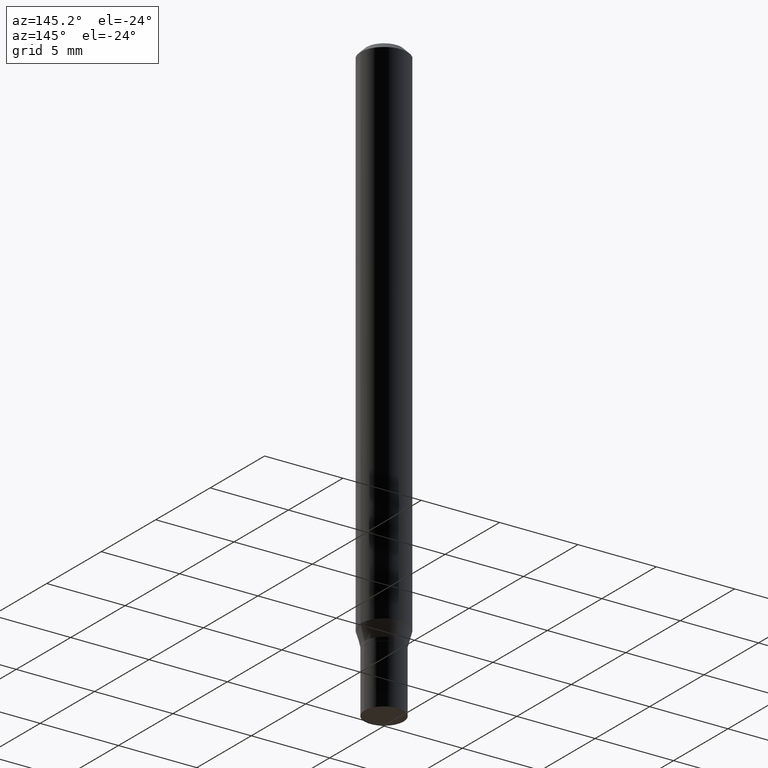
[diagram: clean part render]
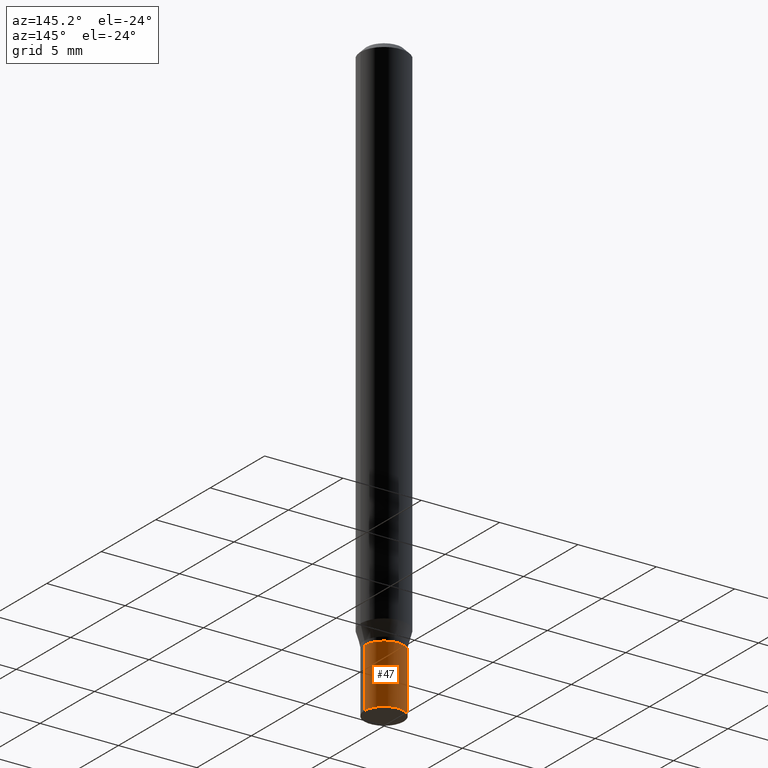
[diagram: same view with one face highlighted and labeled with its STEP entity id]
A machine part, auxiliary view. The second image highlights one B-rep face of the part: STEP entity #47.
In plain terms, the highlighted cylindrical surface (edge-blend (fillet) strip) has radius 1.2497 mm, axis along (-0, 0, 1).
Its self-contained STEP definition (entity closure, byte-faithful):
#25 = AXIS2_PLACEMENT_3D ( 'NONE', #156, #380, #46 ) ;
#31 = CARTESIAN_POINT ( 'NONE',  ( 3.307252013484778620E-29, -4.721879362651470602E-15, -1.352400000000000047 ) ) ;
#35 = EDGE_CURVE ( 'NONE', #443, #134, #213, .T. ) ;
#46 = DIRECTION ( 'NONE',  ( 1.000000000000000000, -6.982962677686261977E-15, 0.000000000000000000 ) ) ;
#47 = ADVANCED_FACE ( 'NONE', ( #236 ), #445, .T. ) ;
#59 = DIRECTION ( 'NONE',  ( 1.000000000000000000, -6.982962677686266711E-15, 4.876176775795935793E-29 ) ) ;
#60 = LINE ( 'NONE', #207, #465 ) ;
#77 = VERTEX_POINT ( 'NONE', #128 ) ;
#87 = CARTESIAN_POINT ( 'NONE',  ( -0.04920000000000000068, -4.629963659464125339E-15, -1.500000000000000222 ) ) ;
#128 = CARTESIAN_POINT ( 'NONE',  ( 0.04920000000000000068, -5.580783772006882701E-15, -1.500000000000000222 ) ) ;
#129 = CARTESIAN_POINT ( 'NONE',  ( 0.04920000000000000068, -5.065441126393634337E-15, -1.352400000000000047 ) ) ;
#134 = VERTEX_POINT ( 'NONE', #163 ) ;
#147 = EDGE_CURVE ( 'NONE', #346, #134, #454, .T. ) ;
#150 = EDGE_LOOP ( 'NONE', ( #300, #164, #387, #266 ) ) ;
#156 = CARTESIAN_POINT ( 'NONE',  ( 3.668203209277704895E-29, -5.237222008264718177E-15, -1.500000000000000222 ) ) ;
#160 = DIRECTION ( 'NONE',  ( -2.445468806185136597E-29, 3.491481338843145583E-15, 1.000000000000000000 ) ) ;
#163 = CARTESIAN_POINT ( 'NONE',  ( -0.04920000000000000068, -4.629963659464125339E-15, -1.352400000000000047 ) ) ;
#164 = ORIENTED_EDGE ( 'NONE', *, *, #35, .T. ) ;
#173 = DIRECTION ( 'NONE',  ( -2.445468806185136877E-29, 3.491481338843145188E-15, 1.000000000000000000 ) ) ;
#207 = CARTESIAN_POINT ( 'NONE',  ( 0.04920000000000000068, -3.435617637421643269E-16, 2.399078973691600472E-30 ) ) ;
#213 = LINE ( 'NONE', #288, #407 ) ;
#236 = FACE_OUTER_BOUND ( 'NONE', #150, .T. ) ;
#239 = DIRECTION ( 'NONE',  ( -2.445468806185136597E-29, 3.491481338843145583E-15, 1.000000000000000000 ) ) ;
#243 = EDGE_CURVE ( 'NONE', #77, #346, #60, .T. ) ;
#245 = DIRECTION ( 'NONE',  ( -2.445468806185136877E-29, 3.491481338843145188E-15, 1.000000000000000000 ) ) ;
#266 = ORIENTED_EDGE ( 'NONE', *, *, #243, .F. ) ;
#285 = AXIS2_PLACEMENT_3D ( 'NONE', #384, #239, #59 ) ;
#288 = CARTESIAN_POINT ( 'NONE',  ( -0.04920000000000000068, 3.495870259939692963E-16, -2.420116064405413767E-30 ) ) ;
#300 = ORIENTED_EDGE ( 'NONE', *, *, #464, .T. ) ;
#339 = AXIS2_PLACEMENT_3D ( 'NONE', #31, #160, #462 ) ;
#346 = VERTEX_POINT ( 'NONE', #129 ) ;
#379 = CIRCLE ( 'NONE', #25, 0.04920000000000000068 ) ;
#380 = DIRECTION ( 'NONE',  ( -2.445468806185136597E-29, 3.491481338843145583E-15, 1.000000000000000000 ) ) ;
#384 = CARTESIAN_POINT ( 'NONE',  ( 0.000000000000000000, 0.000000000000000000, 0.000000000000000000 ) ) ;
#387 = ORIENTED_EDGE ( 'NONE', *, *, #147, .F. ) ;
#407 = VECTOR ( 'NONE', #173, 39.37007874015748143 ) ;
#443 = VERTEX_POINT ( 'NONE', #87 ) ;
#445 = CYLINDRICAL_SURFACE ( 'NONE', #285, 0.04920000000000000068 ) ;
#454 = CIRCLE ( 'NONE', #339, 0.04920000000000000068 ) ;
#462 = DIRECTION ( 'NONE',  ( 1.000000000000000000, -6.982962677686261977E-15, 0.000000000000000000 ) ) ;
#464 = EDGE_CURVE ( 'NONE', #77, #443, #379, .T. ) ;
#465 = VECTOR ( 'NONE', #245, 39.37007874015748143 ) ;